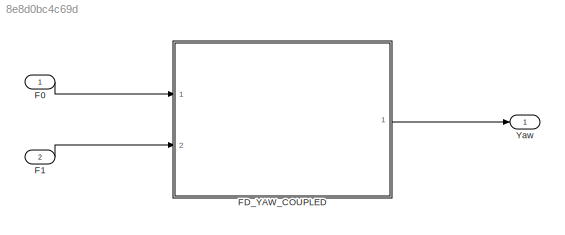
MODEL slx_8e8d0bc4c69d
KIND model
CONFIG AbsTol = auto
CONFIG EnableMultiTasking = off
CONFIG FixedStep = auto
CONFIG MaxStep = auto
CONFIG MinStep = auto
CONFIG RelTol = 1e-3
CONFIG SampleTimeConstraint = Unconstrained
CONFIG Solver = VariableStepAuto
CONFIG SolverName = VariableStepAuto
CONFIG StartTime = 0.0
CONFIG StopTime = 10.0
BLOCK [Inport] F0
  IconDisplay = Port number
BLOCK [Inport] F1 
  IconDisplay = Port number
  Port = 2
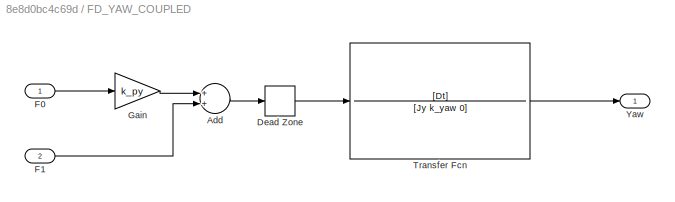
BLOCK [SubSystem] FD_YAW_COUPLED
  Ports = [2, 1]
  RequestExecContextInheritance = off
BLOCK [Sum] FD_YAW_COUPLED/Add
  InputSameDT = off
  OutDataTypeStr = Inherit: Inherit via internal rule
  Ports = [2, 1]
  SaturateOnIntegerOverflow = off
BLOCK [DeadZone] FD_YAW_COUPLED/Dead Zone
  LowerValue = F_limit_yaw
  UpperValue = F_limit_yaw
BLOCK [Inport] FD_YAW_COUPLED/F0
  IconDisplay = Port number
BLOCK [Inport] FD_YAW_COUPLED/F1
  IconDisplay = Port number
  Port = 2
BLOCK [Gain] FD_YAW_COUPLED/Gain
  Gain = k_py
  OutDataTypeStr = Inherit: Inherit via internal rule
  ParamDataTypeStr = Inherit: Inherit via internal rule
  SaturateOnIntegerOverflow = off
BLOCK [TransferFcn] FD_YAW_COUPLED/Transfer Fcn
  Denominator = [Jy k_yaw 0]
  Numerator = [Dt]
BLOCK [Outport] FD_YAW_COUPLED/Yaw
  IconDisplay = Port number
BLOCK [Outport] Yaw
  IconDisplay = Port number
LINE F0:1 -> FD_YAW_COUPLED:1
LINE F1 :1 -> FD_YAW_COUPLED:2
LINE FD_YAW_COUPLED/Add:1 -> FD_YAW_COUPLED/Dead Zone:1
LINE FD_YAW_COUPLED/Dead Zone:1 -> FD_YAW_COUPLED/Transfer Fcn:1
LINE FD_YAW_COUPLED/F0:1 -> FD_YAW_COUPLED/Gain:1
LINE FD_YAW_COUPLED/F1:1 -> FD_YAW_COUPLED/Add:2
LINE FD_YAW_COUPLED/Gain:1 -> FD_YAW_COUPLED/Add:1
LINE FD_YAW_COUPLED/Transfer Fcn:1 -> FD_YAW_COUPLED/Yaw:1
LINE FD_YAW_COUPLED:1 -> Yaw:1
